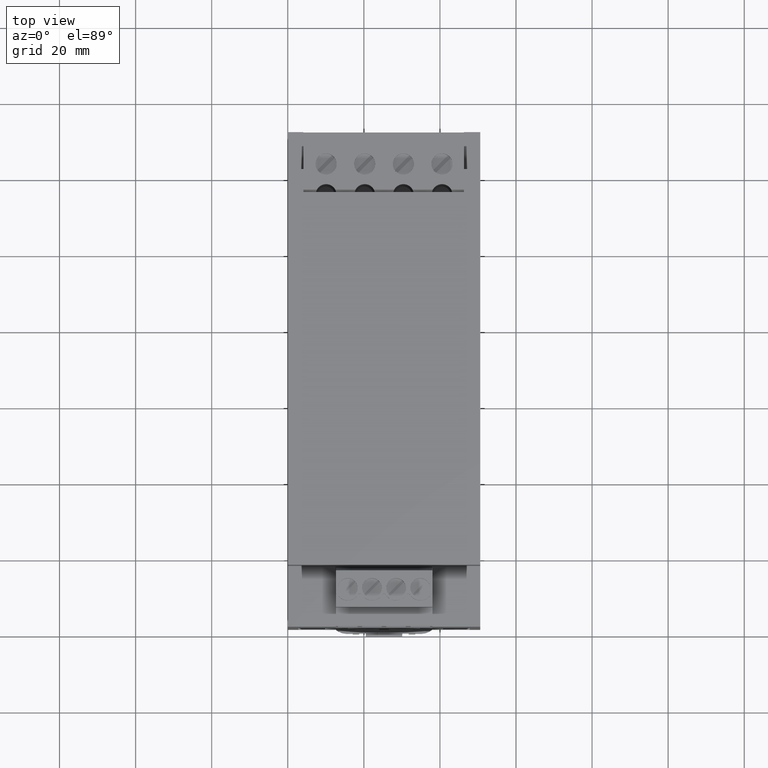
[diagram: clean part render]
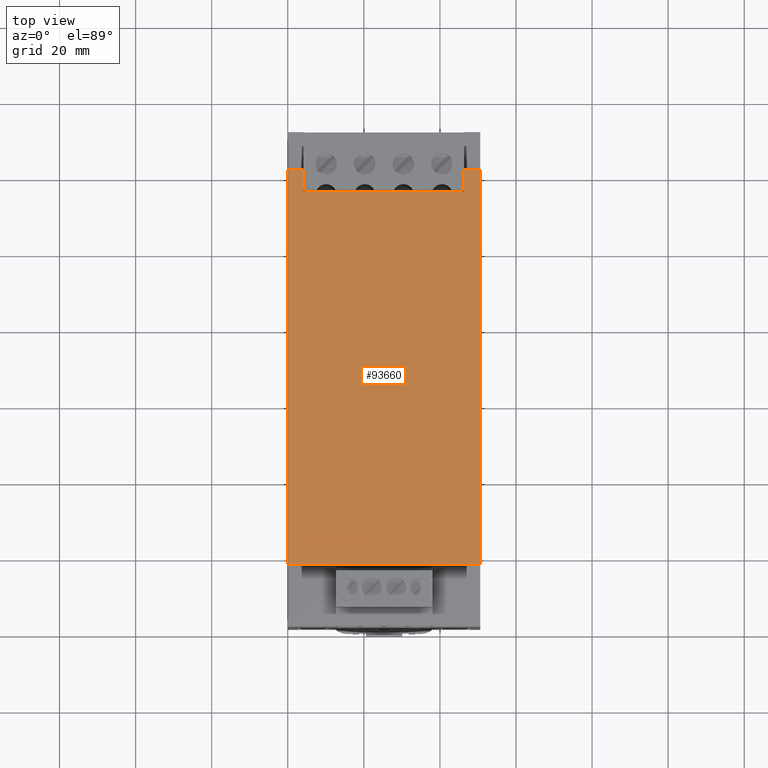
[diagram: same view with one face highlighted and labeled with its STEP entity id]
A machine part, top view. The second image highlights one B-rep face of the part: STEP entity #93660.
In plain terms, the highlighted planar face has unit normal (0, 0, 1).
Its self-contained STEP definition (entity closure, byte-faithful):
#200=CARTESIAN_POINT('',(-25.,144.1,-97.65));
#210=VERTEX_POINT('',#200);
#240=CARTESIAN_POINT('',(-25.,144.1,-0.650000000000006));
#250=DIRECTION('',(0.,0.,1.));
#260=VECTOR('',#250,1.);
#270=LINE('',#240,#260);
#280=CARTESIAN_POINT('',(-25.,144.1,6.34999999999999));
#290=VERTEX_POINT('',#280);
#300=EDGE_CURVE('',#210,#290,#270,.T.);
#1350=CARTESIAN_POINT('',(25.5993386672442,144.1,6.34999999999999));
#1360=VERTEX_POINT('',#1350);
#1390=CARTESIAN_POINT('',(25.5993386672442,144.1,-0.650000000000006));
#1400=DIRECTION('',(0.,0.,-1.));
#1410=VECTOR('',#1400,1.);
#1420=LINE('',#1390,#1410);
#1430=CARTESIAN_POINT('',(25.5993386672442,144.1,-97.65));
#1440=VERTEX_POINT('',#1430);
#1450=EDGE_CURVE('',#1360,#1440,#1420,.T.);
#93010=CARTESIAN_POINT('',(0.299999999999997,144.1,6.34999999999999));
#93020=DIRECTION('',(-1.,0.,0.));
#93030=VECTOR('',#93020,1.);
#93040=LINE('',#93010,#93030);
#93050=EDGE_CURVE('',#1360,#290,#93040,.T.);
#93180=CARTESIAN_POINT('',(-25.951323,144.1,8.951323));
#93190=DIRECTION('',(-0.,1.,0.));
#93200=DIRECTION('',(1.,0.,0.));
#93210=AXIS2_PLACEMENT_3D('',#93180,#93190,#93200);
#93220=PLANE('',#93210);
#93230=CARTESIAN_POINT('',(0.299999999999997,144.1,-91.65));
#93240=DIRECTION('',(-1.,0.,0.));
#93250=VECTOR('',#93240,1.);
#93260=LINE('',#93230,#93250);
#93270=CARTESIAN_POINT('',(21.3,144.1,-91.65));
#93280=VERTEX_POINT('',#93270);
#93290=CARTESIAN_POINT('',(-20.9,144.1,-91.65));
#93300=VERTEX_POINT('',#93290);
#93310=EDGE_CURVE('',#93280,#93300,#93260,.T.);
#93320=ORIENTED_EDGE('',*,*,#93310,.T.);
#93330=CARTESIAN_POINT('',(21.3,144.1,-0.650000000000006));
#93340=DIRECTION('',(0.,0.,1.));
#93350=VECTOR('',#93340,1.);
#93360=LINE('',#93330,#93350);
#93370=CARTESIAN_POINT('',(21.3,144.1,-97.65));
#93380=VERTEX_POINT('',#93370);
#93390=EDGE_CURVE('',#93380,#93280,#93360,.T.);
#93400=ORIENTED_EDGE('',*,*,#93390,.T.);
#93410=CARTESIAN_POINT('',(0.299999999999997,144.1,-97.65));
#93420=DIRECTION('',(-1.,0.,0.));
#93430=VECTOR('',#93420,1.);
#93440=LINE('',#93410,#93430);
#93450=EDGE_CURVE('',#1440,#93380,#93440,.T.);
#93460=ORIENTED_EDGE('',*,*,#93450,.T.);
#93470=ORIENTED_EDGE('',*,*,#1450,.T.);
#93480=ORIENTED_EDGE('',*,*,#93050,.F.);
#93490=ORIENTED_EDGE('',*,*,#300,.T.);
#93500=CARTESIAN_POINT('',(0.299999999999997,144.1,-97.65));
#93510=DIRECTION('',(-1.,0.,0.));
#93520=VECTOR('',#93510,1.);
#93530=LINE('',#93500,#93520);
#93540=CARTESIAN_POINT('',(-20.9,144.1,-97.65));
#93550=VERTEX_POINT('',#93540);
#93560=EDGE_CURVE('',#93550,#210,#93530,.T.);
#93570=ORIENTED_EDGE('',*,*,#93560,.T.);
#93580=CARTESIAN_POINT('',(-20.9,144.1,-0.650000000000006));
#93590=DIRECTION('',(0.,0.,1.));
#93600=VECTOR('',#93590,1.);
#93610=LINE('',#93580,#93600);
#93620=EDGE_CURVE('',#93550,#93300,#93610,.T.);
#93630=ORIENTED_EDGE('',*,*,#93620,.F.);
#93640=EDGE_LOOP('',(#93630,#93570,#93490,#93480,#93470,#93460,#93400,
#93320));
#93650=FACE_OUTER_BOUND('',#93640,.T.);
#93660=ADVANCED_FACE('',(#93650),#93220,.T.);